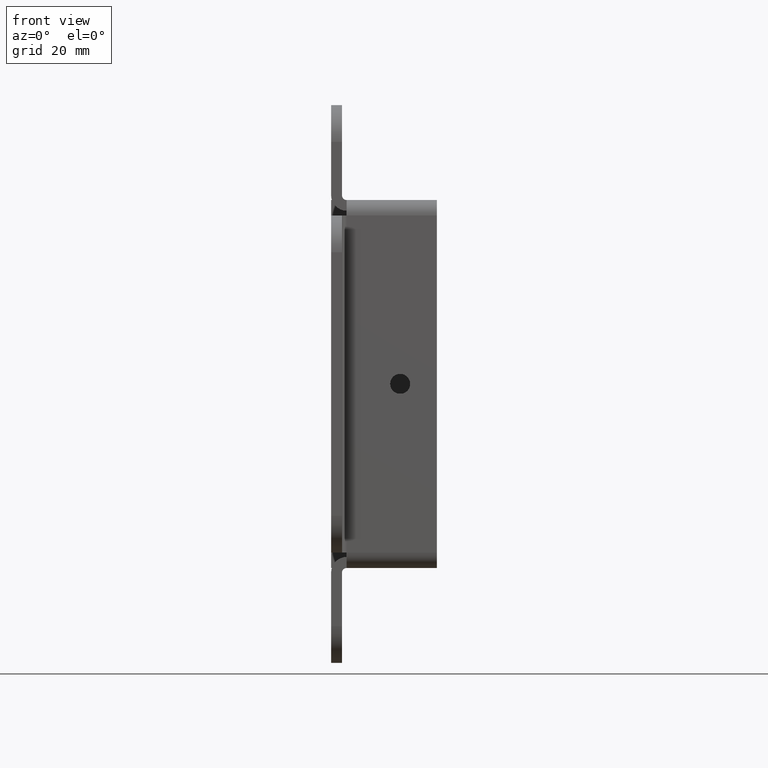
[diagram: clean part render]
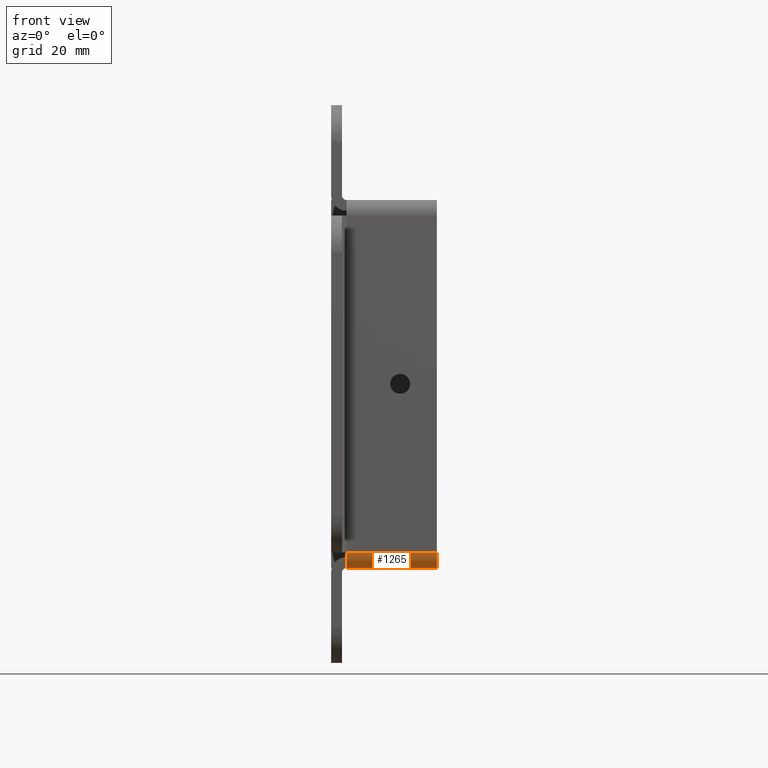
[diagram: same view with one face highlighted and labeled with its STEP entity id]
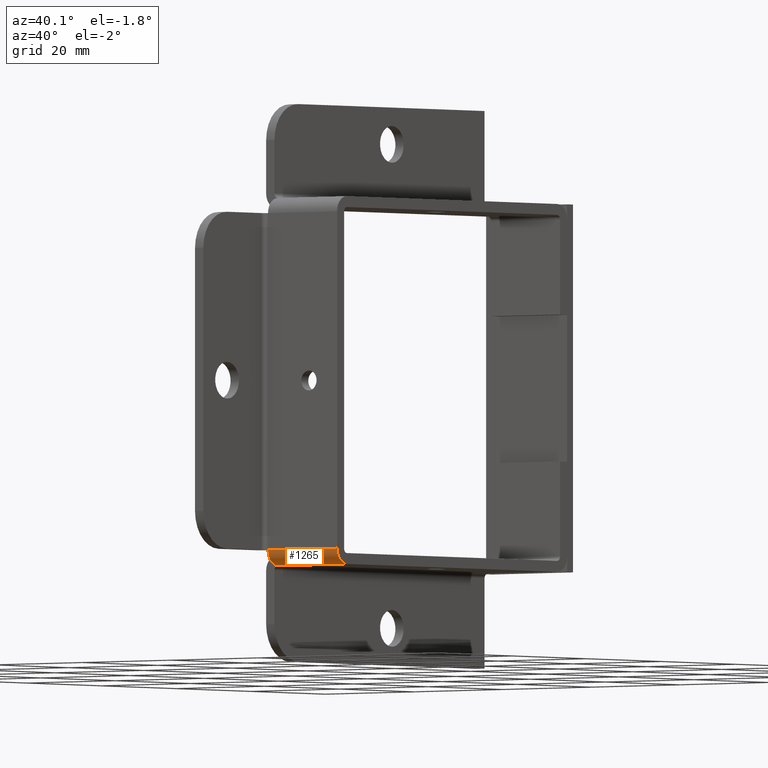
[diagram: same view with one face highlighted and labeled with its STEP entity id]
A machine part, front view. The second image highlights one B-rep face of the part: STEP entity #1265.
A second angle (auxiliary view) of the same face is appended — the face is thin or edge-on in the first view.
In plain terms, the highlighted cylindrical surface (edge-blend (fillet) strip) has radius 2.6733 mm, axis along (1, 0, 0).
Its self-contained STEP definition (entity closure, byte-faithful):
#86=CIRCLE('',#1373,0.10525);
#89=CIRCLE('',#1391,0.10525);
#113=CYLINDRICAL_SURFACE('',#1390,0.10525);
#179=FACE_OUTER_BOUND('',#272,.T.);
#272=EDGE_LOOP('',(#1022,#1023,#1024,#1025));
#361=LINE('',#2026,#471);
#366=LINE('',#2035,#476);
#471=VECTOR('',#1676,0.6135);
#476=VECTOR('',#1683,0.6135);
#566=VERTEX_POINT('',#1950);
#571=VERTEX_POINT('',#1972);
#582=VERTEX_POINT('',#2025);
#585=VERTEX_POINT('',#2033);
#716=EDGE_CURVE('',#566,#571,#86,.T.);
#717=EDGE_CURVE('',#566,#582,#361,.T.);
#722=EDGE_CURVE('',#585,#571,#366,.T.);
#738=EDGE_CURVE('',#582,#585,#89,.T.);
#1022=ORIENTED_EDGE('',*,*,#716,.T.);
#1023=ORIENTED_EDGE('',*,*,#722,.F.);
#1024=ORIENTED_EDGE('',*,*,#738,.F.);
#1025=ORIENTED_EDGE('',*,*,#717,.F.);
#1265=ADVANCED_FACE('',(#179),#113,.T.);
#1373=AXIS2_PLACEMENT_3D('',#2023,#1672,#1673);
#1390=AXIS2_PLACEMENT_3D('',#2066,#1725,#1726);
#1391=AXIS2_PLACEMENT_3D('',#2067,#1727,#1728);
#1672=DIRECTION('center_axis',(1.,0.,0.));
#1673=DIRECTION('ref_axis',(1.13921882087106E-19,-1.,-1.7156567753843E-15));
#1676=DIRECTION('',(1.,-1.13921882087105E-19,0.));
#1683=DIRECTION('',(-1.,-1.13921882087107E-19,1.13921882087065E-19));
#1725=DIRECTION('center_axis',(1.,1.13921882087106E-19,1.95450848867274E-34));
#1726=DIRECTION('ref_axis',(1.13921882087106E-19,-1.,-1.7156567753843E-15));
#1727=DIRECTION('center_axis',(1.,1.13921882087106E-19,1.95450848867274E-34));
#1728=DIRECTION('ref_axis',(0.,-1.,-9.96702735930714E-15));
#1950=CARTESIAN_POINT('',(-0.291125,-1.213,-2.32075));
#1972=CARTESIAN_POINT('',(-0.291125,-1.10775,-2.426));
#2023=CARTESIAN_POINT('Origin',(-0.291125,-1.10775,-2.32075));
#2025=CARTESIAN_POINT('',(0.322375,-1.213,-2.32075));
#2026=CARTESIAN_POINT('',(-0.1611875,-1.213,-2.32075));
#2033=CARTESIAN_POINT('',(0.322375,-1.10775,-2.426));
#2035=CARTESIAN_POINT('',(-1.19902780896669E-20,-1.10775,-2.426));
#2066=CARTESIAN_POINT('Origin',(-5.27139332793454E-21,-1.10775,-2.32075));
#2067=CARTESIAN_POINT('Origin',(0.322375,-1.10775,-2.32075));